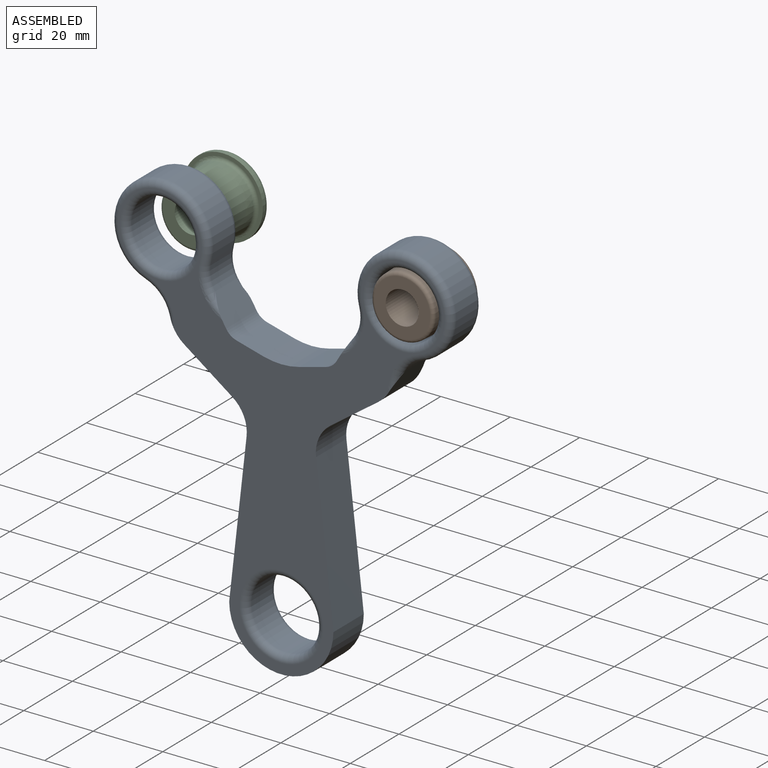
[diagram: assembled view]
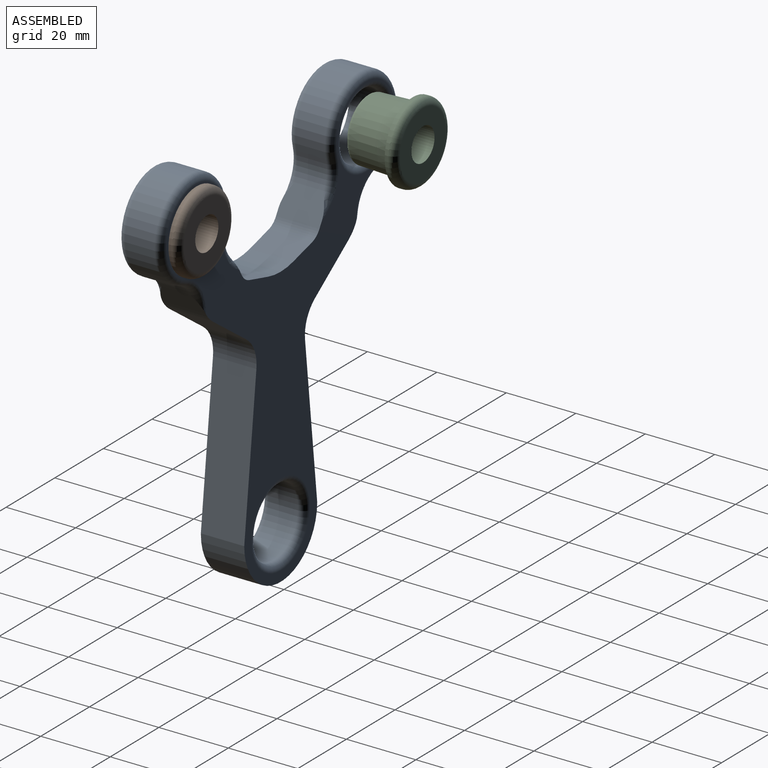
[diagram: assembled view, second angle]
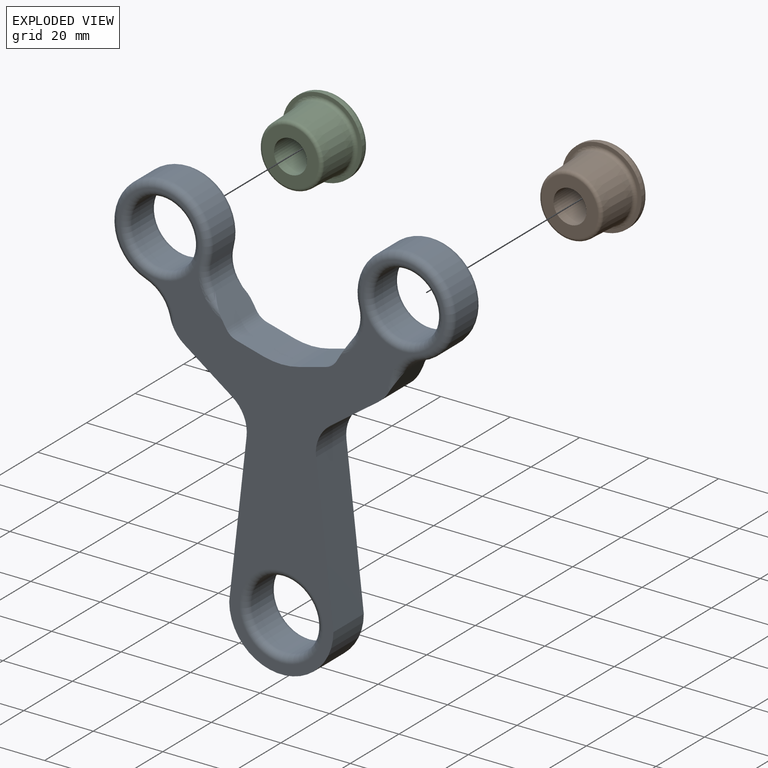
[diagram: exploded view]
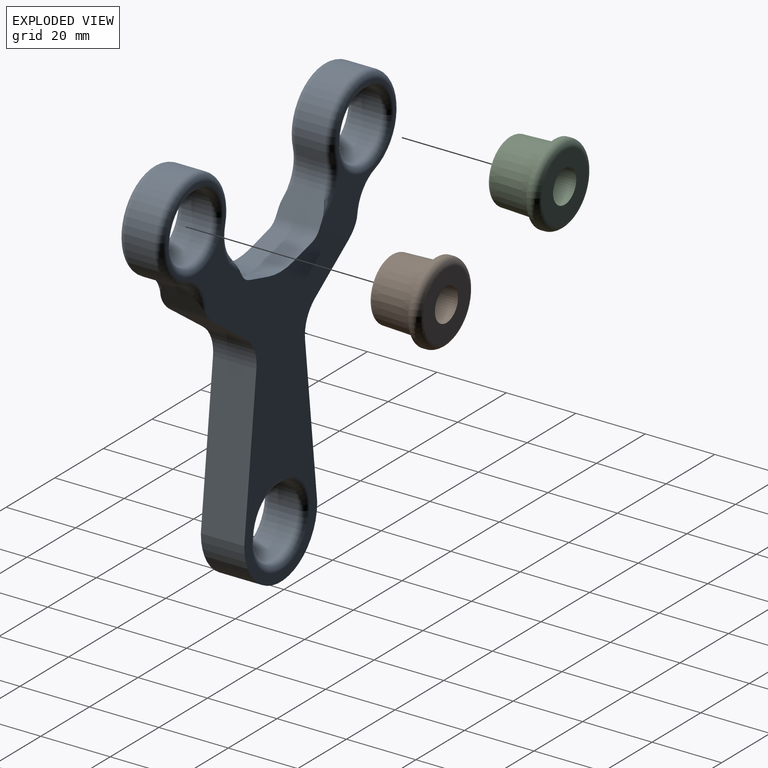
[diagram: exploded view, second angle]
ASSEMBLY  parts=3 mates=2
PART A: 47 faces, bbox 100.3x12.5x120 mm
  f0: cylinder r=5mm len=12.5mm, axis (0,1,0), area 48.4mm2, adj f1,f12,f14,f15
  f1: plane 12.5x7.7mm, normal (0.86,0,0.51), area 101.8mm2, adj f0,f2,f14,f15,f20,f23
  f2: cylinder r=10mm len=8.5mm, axis (0,1,0), area 68.2mm2, adj f1,f3,f20,f23
  f3: cylinder r=14mm len=28mm, axis (0,1,0), area 552.9mm2, adj f2,f4,f21,f24
  f4: cylinder r=10mm len=8.5mm, axis (0,1,0), area 59.7mm2, adj f3,f5,f22,f25
  f5: plane 12.5x5.78mm, normal (-0.86,0,-0.51), area 73.9mm2, adj f4,f6,f14,f15,f22,f25
  f6: cylinder r=10mm len=12.5mm, axis (0,1,0), area 51.6mm2, adj f5,f7,f14,f15
  f7: plane 13.94x12.5mm, normal (-0.58,0,-0.81), area 214.6mm2, adj f6,f8,f14,f15
  f8: cylinder r=10mm len=12.5mm, axis (0,1,0), area 132.5mm2, adj f7,f9,f14,f15
  f9: plane 44.21x12.5mm, normal (-0.99,0,0.11), area 556.1mm2, adj f8,f10,f14,f15
  f10: cylinder r=15mm len=30mm, axis (0,1,0), area 589mm2, adj f9,f14,f15,f35
  f11: cylinder r=10mm len=20mm, axis (0,1,0), area 534.1mm2, adj f16,f17
  f12: plane 12.5x7.7mm, normal (0.26,0,0.97), area 99.7mm2, adj f0,f14,f15,f46
  f13: cylinder r=9.5mm len=19mm, axis (0,1,0), area 507.4mm2, adj f18,f19
  f14: plane 116.85x94mm, normal (0,-1,0), area 2295.2mm2, adj f0,f1,f5,f6,f7,f8,f9,f10
  f15: plane 116.85x94mm, normal (0,1,0), area 2295.2mm2, adj f0,f1,f5,f6,f7,f8,f9,f10
  f16: torus R=12mm, axis (0,-1,0), area 211.7mm2, adj f11,f15
  f17: torus R=12mm, axis (0,-1,0), area 211.7mm2, adj f11,f14
  f18: torus R=11.5mm, axis (0,-1,0), area 201.9mm2, adj f13,f15
  f19: torus R=11.5mm, axis (0,-1,0), area 201.9mm2, adj f13,f14
  f20: torus R=12mm, axis (0,-1,0), area 38.1mm2, adj f1,f2,f15,f21
  f21: torus R=12mm, axis (0,-1,0), area 193.7mm2, adj f3,f15,f20,f22
  f22: torus R=12mm, axis (0,-1,0), area 34.8mm2, adj f4,f5,f15,f21
  f23: torus R=12mm, axis (0,-1,0), area 38.1mm2, adj f1,f2,f14,f24
  f24: torus R=12mm, axis (0,-1,0), area 193.7mm2, adj f3,f14,f23,f25
  f25: torus R=12mm, axis (0,-1,0), area 34.8mm2, adj f4,f5,f14,f24
  f26: cylinder r=5mm len=12.5mm, axis (0,1,0), area 48.4mm2, adj f14,f15,f27,f36
  f27: plane 12.5x7.7mm, normal (-0.86,0,0.51), area 101.8mm2, adj f14,f15,f26,f28,f40,f43
  f28: cylinder r=10mm len=8.5mm, axis (0,1,0), area 68.2mm2, adj f27,f29,f40,f43
  f29: cylinder r=14mm len=28mm, axis (0,1,0), area 552.9mm2, adj f28,f30,f41,f44
  f30: cylinder r=10mm len=8.5mm, axis (0,1,0), area 59.7mm2, adj f29,f31,f42,f45
  f31: plane 12.5x5.78mm, normal (0.86,0,-0.51), area 73.9mm2, adj f14,f15,f30,f32,f42,f45
  f32: cylinder r=10mm len=12.5mm, axis (0,1,0), area 51.6mm2, adj f14,f15,f31,f33
  f33: plane 13.94x12.5mm, normal (0.58,0,-0.81), area 214.6mm2, adj f14,f15,f32,f34
  f34: cylinder r=10mm len=12.5mm, axis (0,1,0), area 132.5mm2, adj f14,f15,f33,f35
  f35: plane 44.21x12.5mm, normal (0.99,0,0.11), area 556.1mm2, adj f10,f14,f15,f34
  f36: plane 12.5x7.7mm, normal (-0.26,0,0.97), area 99.7mm2, adj f14,f15,f26,f46
  f37: cylinder r=9.5mm len=19mm, axis (0,1,0), area 507.4mm2, adj f38,f39
  f38: torus R=11.5mm, axis (0,-1,0), area 201.9mm2, adj f15,f37
  f39: torus R=11.5mm, axis (0,-1,0), area 201.9mm2, adj f14,f37
  f40: torus R=12mm, axis (0,-1,0), area 38.1mm2, adj f15,f27,f28,f41
  f41: torus R=12mm, axis (0,-1,0), area 193.7mm2, adj f15,f29,f40,f42
  f42: torus R=12mm, axis (0,-1,0), area 34.8mm2, adj f15,f30,f31,f41
  f43: torus R=12mm, axis (0,-1,0), area 38.1mm2, adj f14,f27,f28,f44
  f44: torus R=12mm, axis (0,-1,0), area 193.7mm2, adj f14,f29,f43,f45
  f45: torus R=12mm, axis (0,-1,0), area 34.8mm2, adj f14,f30,f31,f44
  f46: cylinder r=20mm len=12.5mm, axis (0,-1,0), area 130.9mm2, adj f12,f14,f15,f36
PART B: 9 faces, bbox 24.9x16x24.9 mm
  f0: cone r=9mm half-angle=2.2deg, axis (0,1,0), area 644.3mm2, adj f6,f7
  f1: plane 16.08x16.08mm, normal (0,-1,0), area 132.1mm2, adj f2,f6
  f2: cylinder r=4.75mm len=16mm, axis (0,1,0), area 477.5mm2, adj f1,f3
  f3: plane 19x19mm, normal (0,1,0), area 212.6mm2, adj f2,f8
  f4: cylinder r=11.5mm len=23mm, axis (0,1,0), area 72.3mm2, adj f5,f8
  f5: plane 23x23mm, normal (0,-1,0), area 71.6mm2, adj f4,f7
  f6: torus R=8.04mm, axis (0,1,0), area 83.4mm2, adj f0,f1
  f7: torus R=10.46mm, axis (0,1,0), area 94.7mm2, adj f0,f5
  f8: torus R=9.5mm, axis (0,1,0), area 212.7mm2, adj f3,f4
PART C: same geometry as B
PLACE A t=(1.03,-0.2,-31.37)mm
PLACE B t=(36.03,10.11,-17.44)mm
PLACE C t=(-33.97,23.34,-17.44)mm
MATE slider C.f0 <-> A.f3  axis (0,-1,0) through (-33.97,0.26,-17.44)mm
MATE slider B.f0 <-> A.f29  axis (0,1,0) through (36.03,-12.96,-17.44)mm
